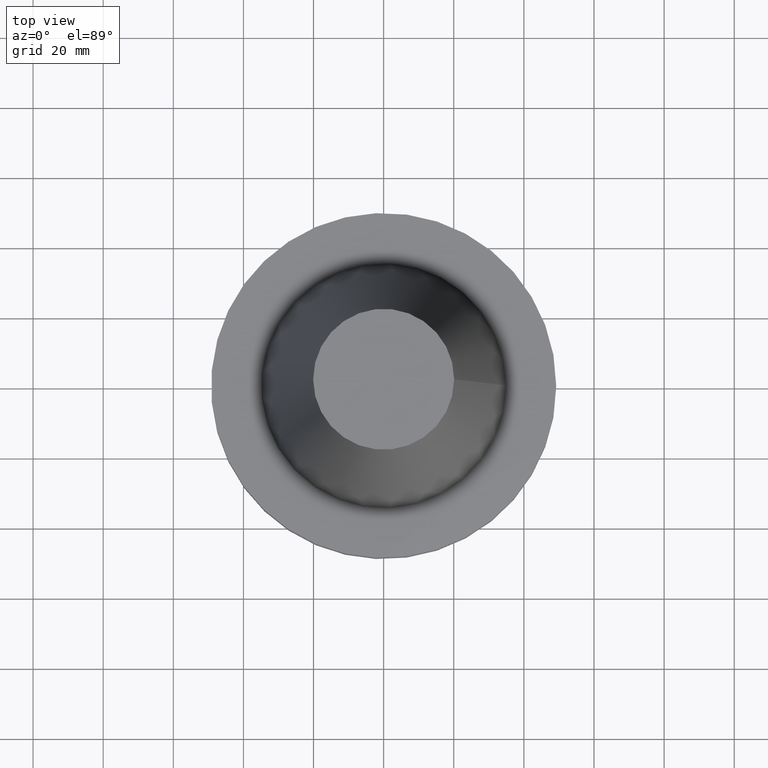
[diagram: clean part render]
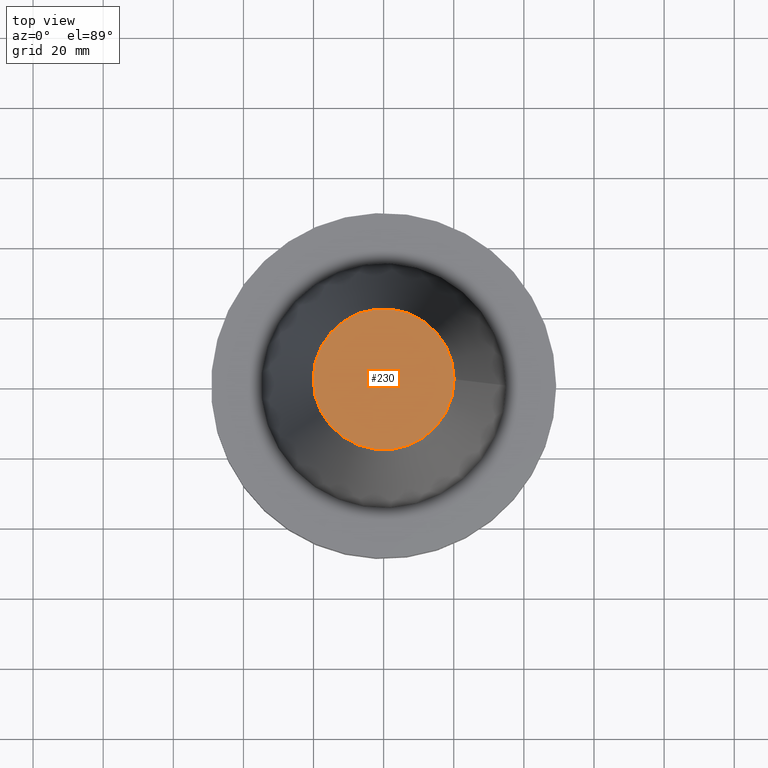
[diagram: same view with one face highlighted and labeled with its STEP entity id]
A machine part, top view. The second image highlights one B-rep face of the part: STEP entity #230.
In plain terms, the highlighted planar face has unit normal (0, 0, -1).
Its self-contained STEP definition (entity closure, byte-faithful):
#11 = FACE_OUTER_BOUND ( 'NONE', #214, .T. ) ;
#28 = CARTESIAN_POINT ( 'NONE',  ( 0.000000000000000000, 0.000000000000000000, 101.5999999999999801 ) ) ;
#102 = AXIS2_PLACEMENT_3D ( 'NONE', #28, #395, #309 ) ;
#136 = EDGE_CURVE ( 'NONE', #234, #234, #160, .T. ) ;
#147 = CARTESIAN_POINT ( 'NONE',  ( 20.10819343178871321, 0.000000000000000000, 101.5999999999999801 ) ) ;
#160 = CIRCLE ( 'NONE', #102, 20.10819343178871321 ) ;
#214 = EDGE_LOOP ( 'NONE', ( #241 ) ) ;
#230 = ADVANCED_FACE ( 'NONE', ( #11 ), #231, .F. ) ;
#231 = PLANE ( 'NONE',  #345 ) ;
#234 = VERTEX_POINT ( 'NONE', #147 ) ;
#241 = ORIENTED_EDGE ( 'NONE', *, *, #136, .T. ) ;
#285 = DIRECTION ( 'NONE',  ( 0.000000000000000000, 0.000000000000000000, -1.000000000000000000 ) ) ;
#309 = DIRECTION ( 'NONE',  ( 1.000000000000000000, 0.000000000000000000, 0.000000000000000000 ) ) ;
#345 = AXIS2_PLACEMENT_3D ( 'NONE', #347, #285, #349 ) ;
#347 = CARTESIAN_POINT ( 'NONE',  ( 0.000000000000000000, 20.10819343178871321, 101.5999999999999943 ) ) ;
#349 = DIRECTION ( 'NONE',  ( -1.000000000000000000, 0.000000000000000000, -0.000000000000000000 ) ) ;
#395 = DIRECTION ( 'NONE',  ( -0.000000000000000000, -0.000000000000000000, 1.000000000000000000 ) ) ;